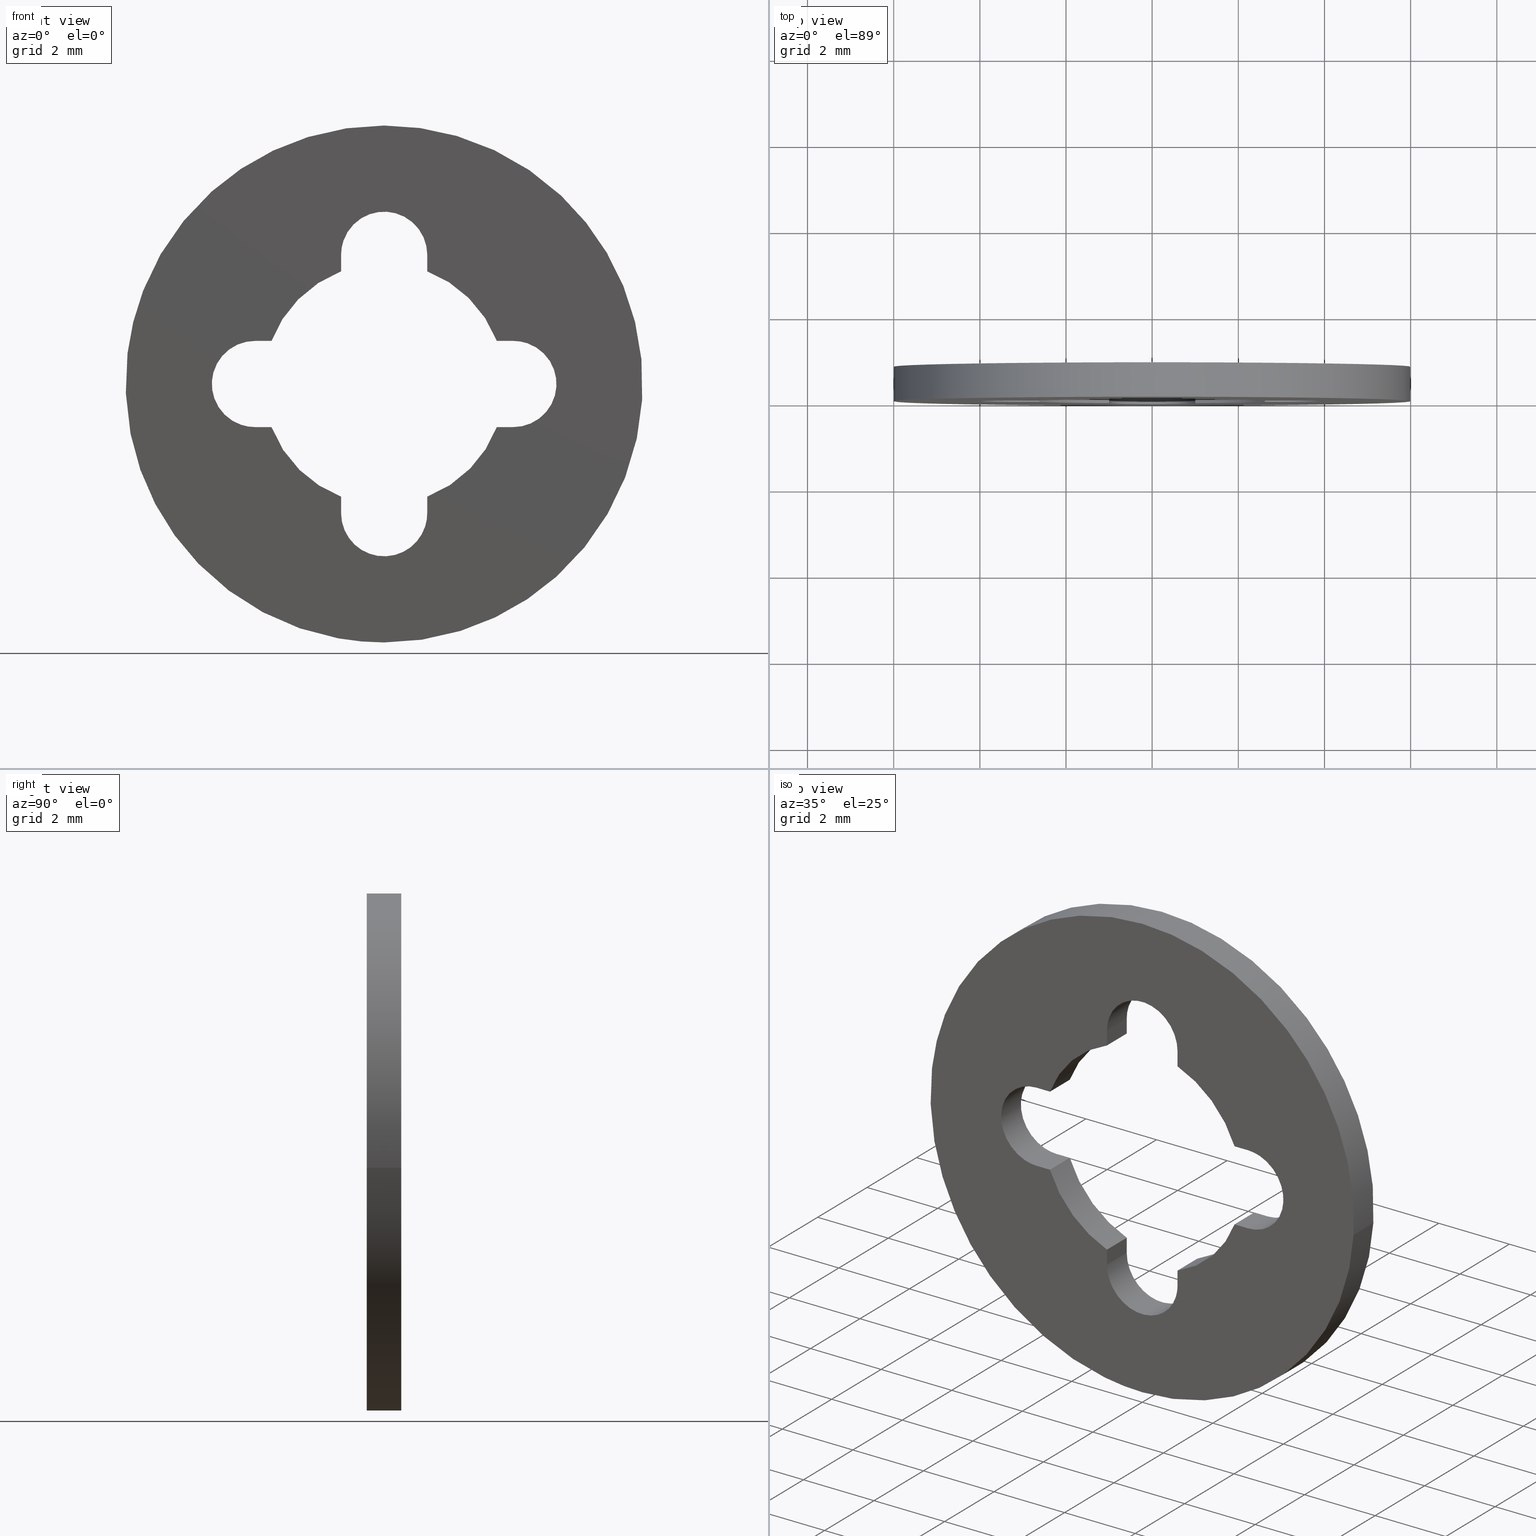
[diagram: canonical four-view strip — front | top / right | iso, engineering-drawing reading convention]
A machine part, canonical four-view strip (front | top / right | iso — engineering-drawing reading convention). The complete STEP part file that produces these views, byte-faithful:
ISO-10303-21;
HEADER;
/****************************************************************
 * Generated by software with PDE/Lib inside                    *
 * PDElib Version 4.4.1-0003, patched  Thursday August 19 11:58 *
 * International Technegroup Inc. (www.iti-oh.com)              *
 ****************************************************************/
FILE_DESCRIPTION((''),'2;1');
FILE_NAME('','2005-07-15T17:46:24',(''),(''),'','CADfix','');
FILE_SCHEMA(('AUTOMOTIVE_DESIGN'));
ENDSEC;
DATA;
#5=APPLICATION_CONTEXT('automotive design');
#6=APPLICATION_PROTOCOL_DEFINITION('Draft International Standard','automotive_design',1998,#5);
#7=PRODUCT_CONTEXT('None',#5,'mechanical');
#8=PRODUCT('washer','','None',(#7));
#9=PRODUCT_RELATED_PRODUCT_CATEGORY('part','description',(#8));
#10=PRODUCT_DEFINITION_FORMATION('None','None',#8);
#11=PRODUCT_DEFINITION_CONTEXT('part definition',#5,'design');
#12=PRODUCT_DEFINITION('None','None',#10,#11);
#18=(NAMED_UNIT(*)PLANE_ANGLE_UNIT()SI_UNIT($,.RADIAN.));
#19=DIMENSIONAL_EXPONENTS(0.0,0.0,0.0,0.0,0.0,0.0,0.0);
#20=PLANE_ANGLE_MEASURE_WITH_UNIT(PLANE_ANGLE_MEASURE(0.017453292500000),#18);
#24=(CONVERSION_BASED_UNIT('DEGREE',#20)NAMED_UNIT(#19)PLANE_ANGLE_UNIT());
#28=(NAMED_UNIT(*)SI_UNIT($,.STERADIAN.)SOLID_ANGLE_UNIT());
#32=(LENGTH_UNIT()NAMED_UNIT(*)SI_UNIT(.MILLI.,.METRE.));
#34=UNCERTAINTY_MEASURE_WITH_UNIT(LENGTH_MEASURE(0.001000000000000),#32,'DISTANCE_ACCURACY_VALUE','');
#36=(GEOMETRIC_REPRESENTATION_CONTEXT(3)GLOBAL_UNCERTAINTY_ASSIGNED_CONTEXT((#34))GLOBAL_UNIT_ASSIGNED_CONTEXT((#24,#28,#32))REPRESENTATION_CONTEXT('None','None'));
#37=AXIS2_PLACEMENT_3D('',#38,#39,#40);
#38=CARTESIAN_POINT('',(0.0,0.0,0.0));
#39=DIRECTION('',(0.0,0.0,1.0));
#40=DIRECTION('',(1.0,0.0,0.0));
#41=ADVANCED_BREP_SHAPE_REPRESENTATION('',(#37,#975),#36);
#42=PRODUCT_DEFINITION_SHAPE('','',#12);
#43=SHAPE_DEFINITION_REPRESENTATION(#42,#41);
#44=CARTESIAN_POINT('',(-5.958057158181998,0.820000000000024,0.708205407940551));
#45=CARTESIAN_POINT('',(-5.978325692691634,0.820000000000024,0.537688371827866));
#46=CARTESIAN_POINT('',(-5.988808790531200,0.820000000000024,0.366291237209142));
#47=CARTESIAN_POINT('',(-6.355100027740342,0.820000000000024,-5.622517553322059));
#48=CARTESIAN_POINT('',(-0.366291237209142,0.820000000000024,-5.988808790531200));
#49=CARTESIAN_POINT('',(5.622517553322059,0.820000000000024,-6.355100027740342));
#50=CARTESIAN_POINT('',(5.988808790531200,0.820000000000024,-0.366291237209142));
#51=CARTESIAN_POINT('',(-5.958057158181998,-0.020500000000001,0.708205407940551));
#52=CARTESIAN_POINT('',(-5.978325692691634,-0.020500000000001,0.537688371827866));
#53=CARTESIAN_POINT('',(-5.988808790531200,-0.020500000000001,0.366291237209142));
#54=CARTESIAN_POINT('',(-6.355100027740342,-0.020500000000001,-5.622517553322059));
#55=CARTESIAN_POINT('',(-0.366291237209142,-0.020500000000001,-5.988808790531200));
#56=CARTESIAN_POINT('',(5.622517553322059,-0.020500000000001,-6.355100027740342));
#57=CARTESIAN_POINT('',(5.988808790531200,-0.020500000000001,-0.366291237209142));
#65=(BOUNDED_SURFACE()B_SPLINE_SURFACE(2,1,((#44,#51),(#45,#52),(#46,#53),(#47,#54),(#48,#55),(#49,#56),(#50,#57)),.UNSPECIFIED.,.F.,.F.,.U.)B_SPLINE_SURFACE_WITH_KNOTS((3,2,2,3),(2,2),(0.0,0.397645019878172,10.338770516832451,20.279896013786729),(0.0,1.0),.UNSPECIFIED.)GEOMETRIC_REPRESENTATION_ITEM()RATIONAL_B_SPLINE_SURFACE(((0.977505800795127,0.977505800795127),(0.988284271247462,0.988284271247462),(1.0,1.0),(0.707106781186548,0.707106781186548),(1.0,1.0),(0.707106781186548,0.707106781186548),(1.0,1.0)))REPRESENTATION_ITEM('')SURFACE());
#66=CARTESIAN_POINT('',(-5.958057609161914,4.394370E-014,0.708201613873624));
#67=VERTEX_POINT('',#66);
#68=CARTESIAN_POINT('',(0.0,0.0,-6.0));
#69=VERTEX_POINT('',#68);
#70=CARTESIAN_POINT('',(-5.958057609161915,4.394370E-014,0.708201613873624));
#71=CARTESIAN_POINT('',(-5.999999999999999,0.0,0.355342800822983));
#72=CARTESIAN_POINT('',(-6.0,0.0,0.0));
#73=CARTESIAN_POINT('',(-6.0,0.0,-6.0));
#74=CARTESIAN_POINT('',(0.0,0.0,-6.0));
#82=(BOUNDED_CURVE()B_SPLINE_CURVE(2,(#70,#71,#72,#73,#74),.UNSPECIFIED.,.F.,.U.)B_SPLINE_CURVE_WITH_KNOTS((3,2,3),(0.229562581136241,0.250000000000000,0.500000000000000),.UNSPECIFIED.)CURVE()GEOMETRIC_REPRESENTATION_ITEM()RATIONAL_B_SPLINE_CURVE((0.956026965128767,0.976056074419019,1.0,0.707106781186548,1.0))REPRESENTATION_ITEM(''));
#83=EDGE_CURVE('',#67,#69,#82,.T.);
#84=ORIENTED_EDGE('',*,*,#83,.F.);
#85=CARTESIAN_POINT('',(-5.958057603599299,0.800000000000023,0.708201660671828));
#86=VERTEX_POINT('',#85);
#87=CARTESIAN_POINT('',(-5.958057603599299,0.800000000000023,0.708201660671828));
#88=CARTESIAN_POINT('',(-5.958057609161914,4.394370E-014,0.708201613873624));
#89=QUASI_UNIFORM_CURVE('',1,(#87,#88),.UNSPECIFIED.,.F.,.U.);
#90=EDGE_CURVE('',#86,#67,#89,.T.);
#91=ORIENTED_EDGE('',*,*,#90,.F.);
#92=CARTESIAN_POINT('',(0.0,0.800000000000023,-6.0));
#93=VERTEX_POINT('',#92);
#94=CARTESIAN_POINT('',(-5.958057603599301,0.800000000000023,0.708201660671828));
#95=CARTESIAN_POINT('',(-6.0,0.800000000000023,0.355342824469453));
#96=CARTESIAN_POINT('',(-6.0,0.800000000000023,0.0));
#97=CARTESIAN_POINT('',(-6.0,0.800000000000023,-6.0));
#98=CARTESIAN_POINT('',(0.0,0.800000000000023,-6.0));
#106=(BOUNDED_CURVE()B_SPLINE_CURVE(2,(#94,#95,#96,#97,#98),.UNSPECIFIED.,.F.,.U.)B_SPLINE_CURVE_WITH_KNOTS((3,2,3),(0.229562579808786,0.250000000000000,0.500000000000000),.UNSPECIFIED.)CURVE()GEOMETRIC_REPRESENTATION_ITEM()RATIONAL_B_SPLINE_CURVE((0.956026962526900,0.976056072863809,1.0,0.707106781186548,1.0))REPRESENTATION_ITEM(''));
#107=EDGE_CURVE('',#86,#93,#106,.T.);
#108=ORIENTED_EDGE('',*,*,#107,.T.);
#109=CARTESIAN_POINT('',(5.988808919991055,0.800000000000023,-0.366289120546966));
#110=VERTEX_POINT('',#109);
#111=CARTESIAN_POINT('',(0.0,0.800000000000023,-6.0));
#112=CARTESIAN_POINT('',(5.644238400040059,0.800000000000023,-6.000000000000001));
#113=CARTESIAN_POINT('',(5.988808919991055,0.800000000000023,-0.366289120546966));
#121=(BOUNDED_CURVE()B_SPLINE_CURVE(2,(#111,#112,#113),.UNSPECIFIED.,.F.,.U.)B_SPLINE_CURVE_WITH_KNOTS((3,3),(0.500000000000000,0.739333023226263),.UNSPECIFIED.)CURVE()GEOMETRIC_REPRESENTATION_ITEM()RATIONAL_B_SPLINE_CURVE((1.0,0.719603921835620,0.976072172374189))REPRESENTATION_ITEM(''));
#122=EDGE_CURVE('',#93,#110,#121,.T.);
#123=ORIENTED_EDGE('',*,*,#122,.T.);
#124=CARTESIAN_POINT('',(5.988808921607088,2.891784E-014,-0.366289094124749));
#125=VERTEX_POINT('',#124);
#126=CARTESIAN_POINT('',(5.988808919991055,0.800000000000023,-0.366289120546966));
#127=CARTESIAN_POINT('',(5.988808921607088,2.891784E-014,-0.366289094124749));
#128=QUASI_UNIFORM_CURVE('',1,(#126,#127),.UNSPECIFIED.,.F.,.U.);
#129=EDGE_CURVE('',#110,#125,#128,.T.);
#130=ORIENTED_EDGE('',*,*,#129,.T.);
#131=CARTESIAN_POINT('',(0.0,0.0,-6.0));
#132=CARTESIAN_POINT('',(5.644238424988588,0.0,-6.0));
#133=CARTESIAN_POINT('',(5.988808921607088,2.891784E-014,-0.366289094124749));
#141=(BOUNDED_CURVE()B_SPLINE_CURVE(2,(#131,#132,#133),.UNSPECIFIED.,.F.,.U.)B_SPLINE_CURVE_WITH_KNOTS((3,3),(0.500000000000000,0.739333023987528),.UNSPECIFIED.)CURVE()GEOMETRIC_REPRESENTATION_ITEM()RATIONAL_B_SPLINE_CURVE((1.0,0.719603920943743,0.976072174005725))REPRESENTATION_ITEM(''));
#142=EDGE_CURVE('',#69,#125,#141,.T.);
#143=ORIENTED_EDGE('',*,*,#142,.F.);
#144=EDGE_LOOP('',(#84,#91,#108,#123,#130,#143));
#145=FACE_OUTER_BOUND('',#144,.T.);
#146=ADVANCED_FACE('',(#145),#65,.T.);
#147=CARTESIAN_POINT('',(5.988808790531200,0.820000000000024,-0.366291237209142));
#148=CARTESIAN_POINT('',(6.355100027740342,0.820000000000024,5.622517553322059));
#149=CARTESIAN_POINT('',(0.366291237209142,0.820000000000024,5.988808790531200));
#150=CARTESIAN_POINT('',(-5.289260945037006,0.820000000000024,6.334717180395164));
#151=CARTESIAN_POINT('',(-5.958057158181998,0.820000000000024,0.708205407940551));
#152=CARTESIAN_POINT('',(5.988808790531200,-0.020500000000001,-0.366291237209142));
#153=CARTESIAN_POINT('',(6.355100027740342,-0.020500000000001,5.622517553322059));
#154=CARTESIAN_POINT('',(0.366291237209142,-0.020500000000001,5.988808790531200));
#155=CARTESIAN_POINT('',(-5.289260945037006,-0.020500000000001,6.334717180395164));
#156=CARTESIAN_POINT('',(-5.958057158181998,-0.020500000000001,0.708205407940551));
#164=(BOUNDED_SURFACE()B_SPLINE_SURFACE(2,1,((#147,#152),(#148,#153),(#149,#154),(#150,#155),(#151,#156)),.UNSPECIFIED.,.F.,.F.,.U.)B_SPLINE_SURFACE_WITH_KNOTS((3,2,3),(2,2),(0.0,9.941125496954278,19.484605974030391),(0.0,1.0),.UNSPECIFIED.)GEOMETRIC_REPRESENTATION_ITEM()RATIONAL_B_SPLINE_SURFACE(((1.0,1.0),(0.707106781186548,0.707106781186548),(1.0,1.0),(0.718822509939086,0.718822509939086),(0.977505800795127,0.977505800795127)))REPRESENTATION_ITEM('')SURFACE());
#165=CARTESIAN_POINT('',(0.0,0.0,6.0));
#166=VERTEX_POINT('',#165);
#167=CARTESIAN_POINT('',(0.0,0.0,6.0));
#168=CARTESIAN_POINT('',(-5.329050573114072,0.0,6.0));
#169=CARTESIAN_POINT('',(-5.958057609161915,4.394370E-014,0.708201613873624));
#177=(BOUNDED_CURVE()B_SPLINE_CURVE(2,(#167,#168,#169),.UNSPECIFIED.,.F.,.U.)B_SPLINE_CURVE_WITH_KNOTS((3,3),(0.0,0.229562581136241),.UNSPECIFIED.)CURVE()GEOMETRIC_REPRESENTATION_ITEM()RATIONAL_B_SPLINE_CURVE((1.0,0.731050706767529,0.956026965128767))REPRESENTATION_ITEM(''));
#178=EDGE_CURVE('',#166,#67,#177,.T.);
#179=ORIENTED_EDGE('',*,*,#178,.F.);
#180=CARTESIAN_POINT('',(5.988808921607088,2.891784E-014,-0.366289094124749));
#181=CARTESIAN_POINT('',(6.000000000000001,0.0,-0.183315505244867));
#182=CARTESIAN_POINT('',(6.0,0.0,0.0));
#183=CARTESIAN_POINT('',(6.0,0.0,6.0));
#184=CARTESIAN_POINT('',(0.0,0.0,6.0));
#192=(BOUNDED_CURVE()B_SPLINE_CURVE(2,(#180,#181,#182,#183,#184),.UNSPECIFIED.,.F.,.U.)B_SPLINE_CURVE_WITH_KNOTS((3,2,3),(0.739333023987528,0.750000000000000,1.0),.UNSPECIFIED.)CURVE()GEOMETRIC_REPRESENTATION_ITEM()RATIONAL_B_SPLINE_CURVE((0.976072174005725,0.987502860242804,1.0,0.707106781186548,1.0))REPRESENTATION_ITEM(''));
#193=EDGE_CURVE('',#125,#166,#192,.T.);
#194=ORIENTED_EDGE('',*,*,#193,.F.);
#195=ORIENTED_EDGE('',*,*,#129,.F.);
#196=CARTESIAN_POINT('',(0.0,0.800000000000023,6.0));
#197=VERTEX_POINT('',#196);
#198=CARTESIAN_POINT('',(5.988808919991055,0.800000000000023,-0.366289120546966));
#199=CARTESIAN_POINT('',(6.0,0.800000000000023,-0.183315518493018));
#200=CARTESIAN_POINT('',(6.0,0.800000000000023,0.0));
#201=CARTESIAN_POINT('',(6.0,0.800000000000023,6.0));
#202=CARTESIAN_POINT('',(0.0,0.800000000000023,6.0));
#210=(BOUNDED_CURVE()B_SPLINE_CURVE(2,(#198,#199,#200,#201,#202),.UNSPECIFIED.,.F.,.U.)B_SPLINE_CURVE_WITH_KNOTS((3,2,3),(0.739333023226263,0.750000000000000,1.0),.UNSPECIFIED.)CURVE()GEOMETRIC_REPRESENTATION_ITEM()RATIONAL_B_SPLINE_CURVE((0.976072172374189,0.987502859350927,1.0,0.707106781186548,1.0))REPRESENTATION_ITEM(''));
#211=EDGE_CURVE('',#110,#197,#210,.T.);
#212=ORIENTED_EDGE('',*,*,#211,.T.);
#213=CARTESIAN_POINT('',(0.0,0.800000000000023,6.0));
#214=CARTESIAN_POINT('',(-5.329050530961814,0.800000000000023,6.000000000000001));
#215=CARTESIAN_POINT('',(-5.958057603599301,0.800000000000023,0.708201660671828));
#223=(BOUNDED_CURVE()B_SPLINE_CURVE(2,(#213,#214,#215),.UNSPECIFIED.,.F.,.U.)B_SPLINE_CURVE_WITH_KNOTS((3,3),(0.0,0.229562579808786),.UNSPECIFIED.)CURVE()GEOMETRIC_REPRESENTATION_ITEM()RATIONAL_B_SPLINE_CURVE((1.0,0.731050708322738,0.956026962526900))REPRESENTATION_ITEM(''));
#224=EDGE_CURVE('',#197,#86,#223,.T.);
#225=ORIENTED_EDGE('',*,*,#224,.T.);
#226=ORIENTED_EDGE('',*,*,#90,.T.);
#227=EDGE_LOOP('',(#179,#194,#195,#212,#225,#226));
#228=FACE_OUTER_BOUND('',#227,.T.);
#229=ADVANCED_FACE('',(#228),#164,.T.);
#230=CARTESIAN_POINT('',(2.973823051692126,0.820000000000024,0.999657324975557));
#231=CARTESIAN_POINT('',(2.973823051692126,-0.020500000000001,0.999657324975557));
#232=CARTESIAN_POINT('',(4.027242072842898,0.820000000000023,1.027242072842902));
#233=CARTESIAN_POINT('',(4.027242072842898,-0.020500000000001,1.027242072842902));
#234=CARTESIAN_POINT('',(3.999657324975557,0.820000000000024,-0.026176948307872));
#235=CARTESIAN_POINT('',(3.999657324975557,-0.020500000000001,-0.026176948307872));
#236=CARTESIAN_POINT('',(3.972072577108214,0.820000000000023,-1.079595969458646));
#237=CARTESIAN_POINT('',(3.972072577108214,-0.020500000000001,-1.079595969458646));
#238=CARTESIAN_POINT('',(2.921540904272156,0.820000000000024,-0.996917333733128));
#239=CARTESIAN_POINT('',(2.921540904272156,-0.020500000000001,-0.996917333733128));
#247=(BOUNDED_SURFACE()B_SPLINE_SURFACE(1,2,((#230,#232,#234,#236,#238),(#231,#233,#235,#237,#239)),.UNSPECIFIED.,.F.,.F.,.U.)B_SPLINE_SURFACE_WITH_KNOTS((2,2),(3,2,3),(0.0,1.0),(0.0,1.0,2.0),.UNSPECIFIED.)GEOMETRIC_REPRESENTATION_ITEM()RATIONAL_B_SPLINE_SURFACE(((1.0,0.688354575693754,1.0,0.688354575693754,1.0),(1.0,0.688354575693754,1.0,0.688354575693754,1.0)))REPRESENTATION_ITEM('')SURFACE());
#248=CARTESIAN_POINT('',(3.0,0.0,-1.0));
#249=VERTEX_POINT('',#248);
#250=CARTESIAN_POINT('',(3.0,0.0,1.0));
#251=VERTEX_POINT('',#250);
#252=CARTESIAN_POINT('',(3.0,0.0,-1.0));
#253=CARTESIAN_POINT('',(4.000000000000000,0.0,-1.0));
#254=CARTESIAN_POINT('',(4.0,0.0,0.0));
#255=CARTESIAN_POINT('',(4.000000000000000,0.0,1.0));
#256=CARTESIAN_POINT('',(3.0,0.0,1.0));
#264=(BOUNDED_CURVE()B_SPLINE_CURVE(2,(#252,#253,#254,#255,#256),.UNSPECIFIED.,.F.,.U.)B_SPLINE_CURVE_WITH_KNOTS((3,2,3),(0.0,0.500000000000000,1.0),.UNSPECIFIED.)CURVE()GEOMETRIC_REPRESENTATION_ITEM()RATIONAL_B_SPLINE_CURVE((1.0,0.707106781186548,1.0,0.707106781186548,1.0))REPRESENTATION_ITEM(''));
#265=EDGE_CURVE('',#249,#251,#264,.T.);
#266=ORIENTED_EDGE('',*,*,#265,.T.);
#267=CARTESIAN_POINT('',(3.0,0.800000000000023,1.0));
#268=VERTEX_POINT('',#267);
#269=CARTESIAN_POINT('',(3.0,0.800000000000023,1.0));
#270=CARTESIAN_POINT('',(3.0,0.0,1.0));
#271=QUASI_UNIFORM_CURVE('',1,(#269,#270),.UNSPECIFIED.,.F.,.U.);
#272=EDGE_CURVE('',#268,#251,#271,.T.);
#273=ORIENTED_EDGE('',*,*,#272,.F.);
#274=CARTESIAN_POINT('',(3.0,0.800000000000023,-1.0));
#275=VERTEX_POINT('',#274);
#276=CARTESIAN_POINT('',(3.0,0.800000000000023,-1.0));
#277=CARTESIAN_POINT('',(4.000000000000000,0.800000000000023,-1.0));
#278=CARTESIAN_POINT('',(4.0,0.800000000000023,0.0));
#279=CARTESIAN_POINT('',(4.000000000000000,0.800000000000023,1.0));
#280=CARTESIAN_POINT('',(3.0,0.800000000000023,1.0));
#288=(BOUNDED_CURVE()B_SPLINE_CURVE(2,(#276,#277,#278,#279,#280),.UNSPECIFIED.,.F.,.U.)B_SPLINE_CURVE_WITH_KNOTS((3,2,3),(0.0,0.500000000000000,1.0),.UNSPECIFIED.)CURVE()GEOMETRIC_REPRESENTATION_ITEM()RATIONAL_B_SPLINE_CURVE((1.0,0.707106781186548,1.0,0.707106781186548,1.0))REPRESENTATION_ITEM(''));
#289=EDGE_CURVE('',#275,#268,#288,.T.);
#290=ORIENTED_EDGE('',*,*,#289,.F.);
#291=CARTESIAN_POINT('',(3.0,0.800000000000023,-1.0));
#292=CARTESIAN_POINT('',(3.0,0.0,-1.0));
#293=QUASI_UNIFORM_CURVE('',1,(#291,#292),.UNSPECIFIED.,.F.,.U.);
#294=EDGE_CURVE('',#275,#249,#293,.T.);
#295=ORIENTED_EDGE('',*,*,#294,.T.);
#296=EDGE_LOOP('',(#266,#273,#290,#295));
#297=FACE_OUTER_BOUND('',#296,.T.);
#298=ADVANCED_FACE('',(#297),#247,.F.);
#299=CARTESIAN_POINT('',(3.019213802039374,-0.039959998449446,-1.0));
#300=CARTESIAN_POINT('',(2.596125471228406,-0.039959998449446,-1.0));
#301=CARTESIAN_POINT('',(3.019213802039374,0.839960019907141,-1.0));
#302=CARTESIAN_POINT('',(2.596125471228406,0.839960019907141,-1.0));
#303=B_SPLINE_SURFACE_WITH_KNOTS('',1,1,((#299,#301),(#300,#302)),.UNSPECIFIED.,.F.,.F.,.U.,(2,2),(2,2),(0.0,0.423088330810968),(0.041708334948495,0.958291687403247),.UNSPECIFIED.);
#304=CARTESIAN_POINT('',(2.615339366124400,0.0,-1.0));
#305=VERTEX_POINT('',#304);
#306=CARTESIAN_POINT('',(2.615339366124400,0.0,-1.0));
#307=CARTESIAN_POINT('',(3.0,0.0,-1.0));
#308=QUASI_UNIFORM_CURVE('',1,(#306,#307),.UNSPECIFIED.,.F.,.U.);
#309=EDGE_CURVE('',#305,#249,#308,.T.);
#310=ORIENTED_EDGE('',*,*,#309,.T.);
#311=ORIENTED_EDGE('',*,*,#294,.F.);
#312=CARTESIAN_POINT('',(2.615339366124400,0.800000000000023,-1.0));
#313=VERTEX_POINT('',#312);
#314=CARTESIAN_POINT('',(2.615339366124400,0.800000000000023,-1.0));
#315=CARTESIAN_POINT('',(3.0,0.800000000000023,-1.0));
#316=QUASI_UNIFORM_CURVE('',1,(#314,#315),.UNSPECIFIED.,.F.,.U.);
#317=EDGE_CURVE('',#313,#275,#316,.T.);
#318=ORIENTED_EDGE('',*,*,#317,.F.);
#319=CARTESIAN_POINT('',(2.615339366124400,0.800000000000023,-1.0));
#320=CARTESIAN_POINT('',(2.615339366124400,0.0,-1.0));
#321=QUASI_UNIFORM_CURVE('',1,(#319,#320),.UNSPECIFIED.,.F.,.U.);
#322=EDGE_CURVE('',#313,#305,#321,.T.);
#323=ORIENTED_EDGE('',*,*,#322,.T.);
#324=EDGE_LOOP('',(#310,#311,#318,#323));
#325=FACE_OUTER_BOUND('',#324,.T.);
#326=ADVANCED_FACE('',(#325),#303,.F.);
#327=CARTESIAN_POINT('',(2.653595675513772,0.820000000000024,-0.893549098200318));
#328=CARTESIAN_POINT('',(2.653595675513772,-0.020500000000001,-0.893549098200318));
#329=CARTESIAN_POINT('',(2.210039401793527,0.820000000000024,-2.210789541016116));
#330=CARTESIAN_POINT('',(2.210039401793527,-0.020500000000001,-2.210789541016116));
#331=CARTESIAN_POINT('',(0.892648506975613,0.820000000000024,-2.653898762762853));
#332=CARTESIAN_POINT('',(0.892648506975613,-0.020500000000001,-2.653898762762853));
#340=(BOUNDED_SURFACE()B_SPLINE_SURFACE(1,2,((#327,#329,#331),(#328,#330,#332)),.UNSPECIFIED.,.F.,.F.,.U.)B_SPLINE_SURFACE_WITH_KNOTS((2,2),(3,3),(0.0,1.0),(0.0,2.626894719128478),.UNSPECIFIED.)GEOMETRIC_REPRESENTATION_ITEM()RATIONAL_B_SPLINE_SURFACE(((0.999851358034276,0.891683071967494,0.991167330352593),(0.999851358034276,0.891683071967494,0.991167330352593)))REPRESENTATION_ITEM('')SURFACE());
#341=CARTESIAN_POINT('',(1.000000000000018,0.0,-2.615339366124394));
#342=VERTEX_POINT('',#341);
#343=CARTESIAN_POINT('',(1.000000000000018,0.0,-2.615339366124397));
#344=CARTESIAN_POINT('',(2.168537779180710,0.0,-2.168537779180697));
#345=CARTESIAN_POINT('',(2.615339366124403,0.0,-1.000000000000002));
#353=(BOUNDED_CURVE()B_SPLINE_CURVE(2,(#343,#344,#345),.UNSPECIFIED.,.F.,.U.)CURVE()GEOMETRIC_REPRESENTATION_ITEM()QUASI_UNIFORM_CURVE()RATIONAL_B_SPLINE_CURVE((1.0,0.913011065027587,1.0))REPRESENTATION_ITEM(''));
#354=EDGE_CURVE('',#342,#305,#353,.T.);
#355=ORIENTED_EDGE('',*,*,#354,.T.);
#356=ORIENTED_EDGE('',*,*,#322,.F.);
#357=CARTESIAN_POINT('',(1.000000000000018,0.800000000000023,-2.615339366124394));
#358=VERTEX_POINT('',#357);
#359=CARTESIAN_POINT('',(1.000000000000018,0.800000000000023,-2.615339366124397));
#360=CARTESIAN_POINT('',(2.168537779180710,0.800000000000023,-2.168537779180697));
#361=CARTESIAN_POINT('',(2.615339366124403,0.800000000000023,-1.000000000000002));
#369=(BOUNDED_CURVE()B_SPLINE_CURVE(2,(#359,#360,#361),.UNSPECIFIED.,.F.,.U.)CURVE()GEOMETRIC_REPRESENTATION_ITEM()QUASI_UNIFORM_CURVE()RATIONAL_B_SPLINE_CURVE((1.0,0.913011065027587,1.0))REPRESENTATION_ITEM(''));
#370=EDGE_CURVE('',#358,#313,#369,.T.);
#371=ORIENTED_EDGE('',*,*,#370,.F.);
#372=CARTESIAN_POINT('',(1.000000000000018,0.800000000000023,-2.615339366124394));
#373=CARTESIAN_POINT('',(1.000000000000018,0.0,-2.615339366124394));
#374=QUASI_UNIFORM_CURVE('',1,(#372,#373),.UNSPECIFIED.,.F.,.U.);
#375=EDGE_CURVE('',#358,#342,#374,.T.);
#376=ORIENTED_EDGE('',*,*,#375,.T.);
#377=EDGE_LOOP('',(#355,#356,#371,#376));
#378=FACE_OUTER_BOUND('',#377,.T.);
#379=ADVANCED_FACE('',(#378),#340,.F.);
#380=CARTESIAN_POINT('',(1.000000000000018,-0.039959998449446,-2.596125487164759));
#381=CARTESIAN_POINT('',(1.000000000000018,-0.039959998449446,-3.019213542787498));
#382=CARTESIAN_POINT('',(1.000000000000018,0.839960019907141,-2.596125487164759));
#383=CARTESIAN_POINT('',(1.000000000000018,0.839960019907141,-3.019213542787498));
#384=B_SPLINE_SURFACE_WITH_KNOTS('',1,1,((#380,#382),(#381,#383)),.UNSPECIFIED.,.F.,.F.,.U.,(2,2),(2,2),(0.0,0.423088055622739),(0.041708334948495,0.958291687403247),.UNSPECIFIED.);
#385=CARTESIAN_POINT('',(0.999999999999985,0.0,-2.999999825467090));
#386=VERTEX_POINT('',#385);
#387=CARTESIAN_POINT('',(0.999999999999985,0.0,-2.999999825467090));
#388=CARTESIAN_POINT('',(1.000000000000018,0.0,-2.615339366124394));
#389=QUASI_UNIFORM_CURVE('',1,(#387,#388),.UNSPECIFIED.,.F.,.U.);
#390=EDGE_CURVE('',#386,#342,#389,.T.);
#391=ORIENTED_EDGE('',*,*,#390,.T.);
#392=ORIENTED_EDGE('',*,*,#375,.F.);
#393=CARTESIAN_POINT('',(0.999999999999985,0.800000000000023,-2.999999825467090));
#394=VERTEX_POINT('',#393);
#395=CARTESIAN_POINT('',(0.999999999999985,0.800000000000023,-2.999999825467090));
#396=CARTESIAN_POINT('',(1.000000000000018,0.800000000000023,-2.615339366124394));
#397=QUASI_UNIFORM_CURVE('',1,(#395,#396),.UNSPECIFIED.,.F.,.U.);
#398=EDGE_CURVE('',#394,#358,#397,.T.);
#399=ORIENTED_EDGE('',*,*,#398,.F.);
#400=CARTESIAN_POINT('',(0.999999999999985,0.800000000000023,-2.999999825467090));
#401=CARTESIAN_POINT('',(0.999999999999985,0.0,-2.999999825467090));
#402=QUASI_UNIFORM_CURVE('',1,(#400,#401),.UNSPECIFIED.,.F.,.U.);
#403=EDGE_CURVE('',#394,#386,#402,.T.);
#404=ORIENTED_EDGE('',*,*,#403,.T.);
#405=EDGE_LOOP('',(#391,#392,#399,#404));
#406=FACE_OUTER_BOUND('',#405,.T.);
#407=ADVANCED_FACE('',(#406),#384,.F.);
#408=CARTESIAN_POINT('',(0.999048221581857,0.820000000000024,-2.956380612634666));
#409=CARTESIAN_POINT('',(0.999048221581857,-0.020500000000001,-2.956380612634666));
#410=CARTESIAN_POINT('',(1.045416995952383,0.820000000000024,-4.018400149585321));
#411=CARTESIAN_POINT('',(1.045416995952383,-0.020500000000001,-4.018400149585321));
#412=CARTESIAN_POINT('',(-0.017452406437285,0.820000000000024,-3.999847695156391));
#413=CARTESIAN_POINT('',(-0.017452406437285,-0.020500000000001,-3.999847695156391));
#414=CARTESIAN_POINT('',(-1.080321808826952,0.820000000000024,-3.981295240727463));
#415=CARTESIAN_POINT('',(-1.080321808826952,-0.020500000000001,-3.981295240727463));
#416=CARTESIAN_POINT('',(-0.996917333733128,0.820000000000024,-2.921540904272154));
#417=CARTESIAN_POINT('',(-0.996917333733128,-0.020500000000001,-2.921540904272154));
#425=(BOUNDED_SURFACE()B_SPLINE_SURFACE(1,2,((#408,#410,#412,#414,#416),(#409,#411,#413,#415,#417)),.UNSPECIFIED.,.F.,.F.,.U.)B_SPLINE_SURFACE_WITH_KNOTS((2,2),(3,2,3),(0.0,1.0),(0.0,1.0,2.0),.UNSPECIFIED.)GEOMETRIC_REPRESENTATION_ITEM()RATIONAL_B_SPLINE_SURFACE(((1.0,0.685182990326359,1.0,0.685182990326359,1.0),(1.0,0.685182990326359,1.0,0.685182990326359,1.0)))REPRESENTATION_ITEM('')SURFACE());
#426=CARTESIAN_POINT('',(-0.999999999999982,0.0,-3.0));
#427=VERTEX_POINT('',#426);
#428=CARTESIAN_POINT('',(-0.999999999999982,0.0,-3.0));
#429=CARTESIAN_POINT('',(-1.0,0.0,-3.577350307974718));
#430=CARTESIAN_POINT('',(-0.499999949616688,0.0,-3.866025432873256));
#431=CARTESIAN_POINT('',(0.000000100766624,0.0,-4.154700557771793));
#432=CARTESIAN_POINT('',(0.500000100766619,0.0,-3.866025345606796));
#433=CARTESIAN_POINT('',(1.000000100766614,0.0,-3.577350133441799));
#434=CARTESIAN_POINT('',(0.999999999999985,0.0,-2.999999825467090));
#442=(BOUNDED_CURVE()B_SPLINE_CURVE(2,(#428,#429,#430,#431,#432,#433,#434),.UNSPECIFIED.,.F.,.U.)B_SPLINE_CURVE_WITH_KNOTS((3,2,2,3),(0.0,0.333333333333333,0.666666666666667,1.0),.UNSPECIFIED.)CURVE()GEOMETRIC_REPRESENTATION_ITEM()RATIONAL_B_SPLINE_CURVE((1.0,0.866025389240029,1.0,0.866025389240029,1.0,0.866025389240029,1.0))REPRESENTATION_ITEM(''));
#443=EDGE_CURVE('',#427,#386,#442,.T.);
#444=ORIENTED_EDGE('',*,*,#443,.T.);
#445=ORIENTED_EDGE('',*,*,#403,.F.);
#446=CARTESIAN_POINT('',(-0.999999999999982,0.800000000000023,-3.0));
#447=VERTEX_POINT('',#446);
#448=CARTESIAN_POINT('',(-0.999999999999982,0.800000000000023,-3.0));
#449=CARTESIAN_POINT('',(-1.0,0.800000000000023,-3.577350307974718));
#450=CARTESIAN_POINT('',(-0.499999949616688,0.800000000000023,-3.866025432873256));
#451=CARTESIAN_POINT('',(0.000000100766624,0.800000000000023,-4.154700557771793));
#452=CARTESIAN_POINT('',(0.500000100766619,0.800000000000023,-3.866025345606796));
#453=CARTESIAN_POINT('',(1.000000100766614,0.800000000000023,-3.577350133441799));
#454=CARTESIAN_POINT('',(0.999999999999985,0.800000000000023,-2.999999825467090));
#462=(BOUNDED_CURVE()B_SPLINE_CURVE(2,(#448,#449,#450,#451,#452,#453,#454),.UNSPECIFIED.,.F.,.U.)B_SPLINE_CURVE_WITH_KNOTS((3,2,2,3),(0.0,0.333333333333333,0.666666666666667,1.0),.UNSPECIFIED.)CURVE()GEOMETRIC_REPRESENTATION_ITEM()RATIONAL_B_SPLINE_CURVE((1.0,0.866025389240029,1.0,0.866025389240029,1.0,0.866025389240029,1.0))REPRESENTATION_ITEM(''));
#463=EDGE_CURVE('',#447,#394,#462,.T.);
#464=ORIENTED_EDGE('',*,*,#463,.F.);
#465=CARTESIAN_POINT('',(-0.999999999999982,0.800000000000023,-3.0));
#466=CARTESIAN_POINT('',(-0.999999999999982,0.0,-3.0));
#467=QUASI_UNIFORM_CURVE('',1,(#465,#466),.UNSPECIFIED.,.F.,.U.);
#468=EDGE_CURVE('',#447,#427,#467,.T.);
#469=ORIENTED_EDGE('',*,*,#468,.T.);
#470=EDGE_LOOP('',(#444,#445,#464,#469));
#471=FACE_OUTER_BOUND('',#470,.T.);
#472=ADVANCED_FACE('',(#471),#425,.F.);
#473=CARTESIAN_POINT('',(-0.999999999999982,-0.039959998449446,-3.019213802039373));
#474=CARTESIAN_POINT('',(-0.999999999999982,-0.039959998449446,-2.596125471228417));
#475=CARTESIAN_POINT('',(-0.999999999999982,0.839960019907141,-3.019213802039373));
#476=CARTESIAN_POINT('',(-0.999999999999982,0.839960019907141,-2.596125471228417));
#477=B_SPLINE_SURFACE_WITH_KNOTS('',1,1,((#473,#475),(#474,#476)),.UNSPECIFIED.,.F.,.F.,.U.,(2,2),(2,2),(0.0,0.423088330810956),(0.041708334948495,0.958291687403247),.UNSPECIFIED.);
#478=CARTESIAN_POINT('',(-0.999999999999982,0.0,-2.615339366124410));
#479=VERTEX_POINT('',#478);
#480=CARTESIAN_POINT('',(-0.999999999999982,0.0,-2.615339366124410));
#481=CARTESIAN_POINT('',(-0.999999999999982,0.0,-3.0));
#482=QUASI_UNIFORM_CURVE('',1,(#480,#481),.UNSPECIFIED.,.F.,.U.);
#483=EDGE_CURVE('',#479,#427,#482,.T.);
#484=ORIENTED_EDGE('',*,*,#483,.T.);
#485=ORIENTED_EDGE('',*,*,#468,.F.);
#486=CARTESIAN_POINT('',(-0.999999999999982,0.800000000000023,-2.615339366124410));
#487=VERTEX_POINT('',#486);
#488=CARTESIAN_POINT('',(-0.999999999999982,0.800000000000023,-2.615339366124410));
#489=CARTESIAN_POINT('',(-0.999999999999982,0.800000000000023,-3.0));
#490=QUASI_UNIFORM_CURVE('',1,(#488,#489),.UNSPECIFIED.,.F.,.U.);
#491=EDGE_CURVE('',#487,#447,#490,.T.);
#492=ORIENTED_EDGE('',*,*,#491,.F.);
#493=CARTESIAN_POINT('',(-0.999999999999982,0.800000000000023,-2.615339366124410));
#494=CARTESIAN_POINT('',(-0.999999999999982,0.0,-2.615339366124410));
#495=QUASI_UNIFORM_CURVE('',1,(#493,#494),.UNSPECIFIED.,.F.,.U.);
#496=EDGE_CURVE('',#487,#479,#495,.T.);
#497=ORIENTED_EDGE('',*,*,#496,.T.);
#498=EDGE_LOOP('',(#484,#485,#492,#497));
#499=FACE_OUTER_BOUND('',#498,.T.);
#500=ADVANCED_FACE('',(#499),#477,.F.);
#501=CARTESIAN_POINT('',(-0.893549098200336,0.820000000000024,-2.653595675513766));
#502=CARTESIAN_POINT('',(-0.893549098200336,-0.020500000000001,-2.653595675513766));
#503=CARTESIAN_POINT('',(-2.210789541016130,0.820000000000024,-2.210039401793512));
#504=CARTESIAN_POINT('',(-2.210789541016130,-0.020500000000001,-2.210039401793512));
#505=CARTESIAN_POINT('',(-2.653898762762860,0.820000000000024,-0.892648506975595));
#506=CARTESIAN_POINT('',(-2.653898762762860,-0.020500000000001,-0.892648506975595));
#514=(BOUNDED_SURFACE()B_SPLINE_SURFACE(1,2,((#501,#503,#505),(#502,#504,#506)),.UNSPECIFIED.,.F.,.F.,.U.)B_SPLINE_SURFACE_WITH_KNOTS((2,2),(3,3),(0.0,1.0),(0.0,2.626894719128480),.UNSPECIFIED.)GEOMETRIC_REPRESENTATION_ITEM()RATIONAL_B_SPLINE_SURFACE(((0.999851358034276,0.891683071967494,0.991167330352593),(0.999851358034276,0.891683071967494,0.991167330352593)))REPRESENTATION_ITEM('')SURFACE());
#515=CARTESIAN_POINT('',(-2.615339366124400,0.0,-1.0));
#516=VERTEX_POINT('',#515);
#517=CARTESIAN_POINT('',(-2.615339366124404,0.0,-1.000000000000001));
#518=CARTESIAN_POINT('',(-2.168537779180702,0.0,-2.168537779180717));
#519=CARTESIAN_POINT('',(-0.999999999999983,0.0,-2.615339366124411));
#527=(BOUNDED_CURVE()B_SPLINE_CURVE(2,(#517,#518,#519),.UNSPECIFIED.,.F.,.U.)CURVE()GEOMETRIC_REPRESENTATION_ITEM()QUASI_UNIFORM_CURVE()RATIONAL_B_SPLINE_CURVE((1.0,0.913011065027585,1.0))REPRESENTATION_ITEM(''));
#528=EDGE_CURVE('',#516,#479,#527,.T.);
#529=ORIENTED_EDGE('',*,*,#528,.T.);
#530=ORIENTED_EDGE('',*,*,#496,.F.);
#531=CARTESIAN_POINT('',(-2.615339366124400,0.800000000000023,-1.0));
#532=VERTEX_POINT('',#531);
#533=CARTESIAN_POINT('',(-2.615339366124404,0.800000000000023,-1.000000000000001));
#534=CARTESIAN_POINT('',(-2.168537779180702,0.800000000000023,-2.168537779180717));
#535=CARTESIAN_POINT('',(-0.999999999999983,0.800000000000023,-2.615339366124411));
#543=(BOUNDED_CURVE()B_SPLINE_CURVE(2,(#533,#534,#535),.UNSPECIFIED.,.F.,.U.)CURVE()GEOMETRIC_REPRESENTATION_ITEM()QUASI_UNIFORM_CURVE()RATIONAL_B_SPLINE_CURVE((1.0,0.913011065027585,1.0))REPRESENTATION_ITEM(''));
#544=EDGE_CURVE('',#532,#487,#543,.T.);
#545=ORIENTED_EDGE('',*,*,#544,.F.);
#546=CARTESIAN_POINT('',(-2.615339366124400,0.800000000000023,-1.0));
#547=CARTESIAN_POINT('',(-2.615339366124400,0.0,-1.0));
#548=QUASI_UNIFORM_CURVE('',1,(#546,#547),.UNSPECIFIED.,.F.,.U.);
#549=EDGE_CURVE('',#532,#516,#548,.T.);
#550=ORIENTED_EDGE('',*,*,#549,.T.);
#551=EDGE_LOOP('',(#529,#530,#545,#550));
#552=FACE_OUTER_BOUND('',#551,.T.);
#553=ADVANCED_FACE('',(#552),#514,.F.);
#554=CARTESIAN_POINT('',(-2.596125474323971,-0.039959998449446,-1.0));
#555=CARTESIAN_POINT('',(-3.019213812700346,-0.039959998449446,-1.0));
#556=CARTESIAN_POINT('',(-2.596125474323971,0.839960019907141,-1.0));
#557=CARTESIAN_POINT('',(-3.019213812700346,0.839960019907141,-1.0));
#558=B_SPLINE_SURFACE_WITH_KNOTS('',1,1,((#554,#556),(#555,#557)),.UNSPECIFIED.,.F.,.F.,.U.,(2,2),(2,2),(0.0,0.423088338376375),(0.041708334948495,0.958291687403247),.UNSPECIFIED.);
#559=CARTESIAN_POINT('',(-3.0,0.0,-1.0));
#560=VERTEX_POINT('',#559);
#561=CARTESIAN_POINT('',(-3.0,0.0,-1.0));
#562=CARTESIAN_POINT('',(-2.615339366124400,0.0,-1.0));
#563=QUASI_UNIFORM_CURVE('',1,(#561,#562),.UNSPECIFIED.,.F.,.U.);
#564=EDGE_CURVE('',#560,#516,#563,.T.);
#565=ORIENTED_EDGE('',*,*,#564,.T.);
#566=ORIENTED_EDGE('',*,*,#549,.F.);
#567=CARTESIAN_POINT('',(-3.0,0.800000000000023,-1.0));
#568=VERTEX_POINT('',#567);
#569=CARTESIAN_POINT('',(-3.0,0.800000000000023,-1.0));
#570=CARTESIAN_POINT('',(-2.615339366124400,0.800000000000023,-1.0));
#571=QUASI_UNIFORM_CURVE('',1,(#569,#570),.UNSPECIFIED.,.F.,.U.);
#572=EDGE_CURVE('',#568,#532,#571,.T.);
#573=ORIENTED_EDGE('',*,*,#572,.F.);
#574=CARTESIAN_POINT('',(-3.0,0.800000000000023,-1.0));
#575=CARTESIAN_POINT('',(-3.0,0.0,-1.0));
#576=QUASI_UNIFORM_CURVE('',1,(#574,#575),.UNSPECIFIED.,.F.,.U.);
#577=EDGE_CURVE('',#568,#560,#576,.T.);
#578=ORIENTED_EDGE('',*,*,#577,.T.);
#579=EDGE_LOOP('',(#565,#566,#573,#578));
#580=FACE_OUTER_BOUND('',#579,.T.);
#581=ADVANCED_FACE('',(#580),#558,.F.);
#582=CARTESIAN_POINT('',(-2.973823051692126,0.820000000000024,-0.999657324975557));
#583=CARTESIAN_POINT('',(-2.973823051692126,-0.020500000000001,-0.999657324975557));
#584=CARTESIAN_POINT('',(-4.027242072842898,0.820000000000023,-1.027242072842902));
#585=CARTESIAN_POINT('',(-4.027242072842898,-0.020500000000001,-1.027242072842902));
#586=CARTESIAN_POINT('',(-3.999657324975557,0.820000000000024,0.026176948307872));
#587=CARTESIAN_POINT('',(-3.999657324975557,-0.020500000000001,0.026176948307872));
#588=CARTESIAN_POINT('',(-3.972072577108214,0.820000000000023,1.079595969458646));
#589=CARTESIAN_POINT('',(-3.972072577108214,-0.020500000000001,1.079595969458646));
#590=CARTESIAN_POINT('',(-2.921540904272156,0.820000000000024,0.996917333733128));
#591=CARTESIAN_POINT('',(-2.921540904272156,-0.020500000000001,0.996917333733128));
#599=(BOUNDED_SURFACE()B_SPLINE_SURFACE(1,2,((#582,#584,#586,#588,#590),(#583,#585,#587,#589,#591)),.UNSPECIFIED.,.F.,.F.,.U.)B_SPLINE_SURFACE_WITH_KNOTS((2,2),(3,2,3),(0.0,1.0),(0.0,1.0,2.0),.UNSPECIFIED.)GEOMETRIC_REPRESENTATION_ITEM()RATIONAL_B_SPLINE_SURFACE(((1.0,0.688354575693754,1.0,0.688354575693754,1.0),(1.0,0.688354575693754,1.0,0.688354575693754,1.0)))REPRESENTATION_ITEM('')SURFACE());
#600=CARTESIAN_POINT('',(-3.0,0.0,1.0));
#601=VERTEX_POINT('',#600);
#602=CARTESIAN_POINT('',(-3.0,0.0,1.0));
#603=CARTESIAN_POINT('',(-4.000000000000000,0.0,1.0));
#604=CARTESIAN_POINT('',(-4.0,0.0,0.0));
#605=CARTESIAN_POINT('',(-4.000000000000000,0.0,-1.0));
#606=CARTESIAN_POINT('',(-3.0,0.0,-1.0));
#614=(BOUNDED_CURVE()B_SPLINE_CURVE(2,(#602,#603,#604,#605,#606),.UNSPECIFIED.,.F.,.U.)B_SPLINE_CURVE_WITH_KNOTS((3,2,3),(0.0,0.500000000000000,1.0),.UNSPECIFIED.)CURVE()GEOMETRIC_REPRESENTATION_ITEM()RATIONAL_B_SPLINE_CURVE((1.0,0.707106781186548,1.0,0.707106781186548,1.0))REPRESENTATION_ITEM(''));
#615=EDGE_CURVE('',#601,#560,#614,.T.);
#616=ORIENTED_EDGE('',*,*,#615,.T.);
#617=ORIENTED_EDGE('',*,*,#577,.F.);
#618=CARTESIAN_POINT('',(-3.0,0.800000000000023,1.0));
#619=VERTEX_POINT('',#618);
#620=CARTESIAN_POINT('',(-3.0,0.800000000000023,1.0));
#621=CARTESIAN_POINT('',(-4.000000000000000,0.800000000000023,1.0));
#622=CARTESIAN_POINT('',(-4.0,0.800000000000023,0.0));
#623=CARTESIAN_POINT('',(-4.000000000000000,0.800000000000023,-1.0));
#624=CARTESIAN_POINT('',(-3.0,0.800000000000023,-1.0));
#632=(BOUNDED_CURVE()B_SPLINE_CURVE(2,(#620,#621,#622,#623,#624),.UNSPECIFIED.,.F.,.U.)B_SPLINE_CURVE_WITH_KNOTS((3,2,3),(0.0,0.500000000000000,1.0),.UNSPECIFIED.)CURVE()GEOMETRIC_REPRESENTATION_ITEM()RATIONAL_B_SPLINE_CURVE((1.0,0.707106781186548,1.0,0.707106781186548,1.0))REPRESENTATION_ITEM(''));
#633=EDGE_CURVE('',#619,#568,#632,.T.);
#634=ORIENTED_EDGE('',*,*,#633,.F.);
#635=CARTESIAN_POINT('',(-3.0,0.800000000000023,1.0));
#636=CARTESIAN_POINT('',(-3.0,0.0,1.0));
#637=QUASI_UNIFORM_CURVE('',1,(#635,#636),.UNSPECIFIED.,.F.,.U.);
#638=EDGE_CURVE('',#619,#601,#637,.T.);
#639=ORIENTED_EDGE('',*,*,#638,.T.);
#640=EDGE_LOOP('',(#616,#617,#634,#639));
#641=FACE_OUTER_BOUND('',#640,.T.);
#642=ADVANCED_FACE('',(#641),#599,.F.);
#643=CARTESIAN_POINT('',(-3.019213802039374,-0.039959998449446,1.0));
#644=CARTESIAN_POINT('',(-2.596125471228406,-0.039959998449446,1.0));
#645=CARTESIAN_POINT('',(-3.019213802039374,0.839960019907141,1.0));
#646=CARTESIAN_POINT('',(-2.596125471228406,0.839960019907141,1.0));
#647=B_SPLINE_SURFACE_WITH_KNOTS('',1,1,((#643,#645),(#644,#646)),.UNSPECIFIED.,.F.,.F.,.U.,(2,2),(2,2),(0.0,0.423088330810968),(0.041708334948495,0.958291687403247),.UNSPECIFIED.);
#648=CARTESIAN_POINT('',(-2.615339366124400,0.0,1.0));
#649=VERTEX_POINT('',#648);
#650=CARTESIAN_POINT('',(-2.615339366124400,0.0,1.0));
#651=CARTESIAN_POINT('',(-3.0,0.0,1.0));
#652=QUASI_UNIFORM_CURVE('',1,(#650,#651),.UNSPECIFIED.,.F.,.U.);
#653=EDGE_CURVE('',#649,#601,#652,.T.);
#654=ORIENTED_EDGE('',*,*,#653,.T.);
#655=ORIENTED_EDGE('',*,*,#638,.F.);
#656=CARTESIAN_POINT('',(-2.615339366124400,0.800000000000023,1.0));
#657=VERTEX_POINT('',#656);
#658=CARTESIAN_POINT('',(-2.615339366124400,0.800000000000023,1.0));
#659=CARTESIAN_POINT('',(-3.0,0.800000000000023,1.0));
#660=QUASI_UNIFORM_CURVE('',1,(#658,#659),.UNSPECIFIED.,.F.,.U.);
#661=EDGE_CURVE('',#657,#619,#660,.T.);
#662=ORIENTED_EDGE('',*,*,#661,.F.);
#663=CARTESIAN_POINT('',(-2.615339366124400,0.800000000000023,1.0));
#664=CARTESIAN_POINT('',(-2.615339366124400,0.0,1.0));
#665=QUASI_UNIFORM_CURVE('',1,(#663,#664),.UNSPECIFIED.,.F.,.U.);
#666=EDGE_CURVE('',#657,#649,#665,.T.);
#667=ORIENTED_EDGE('',*,*,#666,.T.);
#668=EDGE_LOOP('',(#654,#655,#662,#667));
#669=FACE_OUTER_BOUND('',#668,.T.);
#670=ADVANCED_FACE('',(#669),#647,.F.);
#671=CARTESIAN_POINT('',(-2.653595675513760,0.820000000000024,0.893549098200355));
#672=CARTESIAN_POINT('',(-2.653595675513760,-0.020500000000001,0.893549098200355));
#673=CARTESIAN_POINT('',(-2.210039401793497,0.820000000000023,2.210789541016146));
#674=CARTESIAN_POINT('',(-2.210039401793497,-0.020500000000001,2.210789541016146));
#675=CARTESIAN_POINT('',(-0.892648506975576,0.820000000000024,2.653898762762866));
#676=CARTESIAN_POINT('',(-0.892648506975576,-0.020500000000001,2.653898762762866));
#684=(BOUNDED_SURFACE()B_SPLINE_SURFACE(1,2,((#671,#673,#675),(#672,#674,#676)),.UNSPECIFIED.,.F.,.F.,.U.)B_SPLINE_SURFACE_WITH_KNOTS((2,2),(3,3),(0.0,1.0),(0.0,2.626894719128479),.UNSPECIFIED.)GEOMETRIC_REPRESENTATION_ITEM()RATIONAL_B_SPLINE_SURFACE(((0.999851358034276,0.891683071967494,0.991167330352593),(0.999851358034276,0.891683071967494,0.991167330352593)))REPRESENTATION_ITEM('')SURFACE());
#685=CARTESIAN_POINT('',(-0.999999999999982,0.0,2.615339366124410));
#686=VERTEX_POINT('',#685);
#687=CARTESIAN_POINT('',(-0.999999999999983,0.0,2.615339366124411));
#688=CARTESIAN_POINT('',(-2.168537779180701,0.0,2.168537779180718));
#689=CARTESIAN_POINT('',(-2.615339366124403,0.0,1.000000000000001));
#697=(BOUNDED_CURVE()B_SPLINE_CURVE(2,(#687,#688,#689),.UNSPECIFIED.,.F.,.U.)CURVE()GEOMETRIC_REPRESENTATION_ITEM()QUASI_UNIFORM_CURVE()RATIONAL_B_SPLINE_CURVE((1.0,0.913011065027585,1.0))REPRESENTATION_ITEM(''));
#698=EDGE_CURVE('',#686,#649,#697,.T.);
#699=ORIENTED_EDGE('',*,*,#698,.T.);
#700=ORIENTED_EDGE('',*,*,#666,.F.);
#701=CARTESIAN_POINT('',(-0.999999999999982,0.800000000000023,2.615339366124410));
#702=VERTEX_POINT('',#701);
#703=CARTESIAN_POINT('',(-0.999999999999983,0.800000000000023,2.615339366124411));
#704=CARTESIAN_POINT('',(-2.168537779180701,0.800000000000023,2.168537779180718));
#705=CARTESIAN_POINT('',(-2.615339366124403,0.800000000000023,1.000000000000001));
#713=(BOUNDED_CURVE()B_SPLINE_CURVE(2,(#703,#704,#705),.UNSPECIFIED.,.F.,.U.)CURVE()GEOMETRIC_REPRESENTATION_ITEM()QUASI_UNIFORM_CURVE()RATIONAL_B_SPLINE_CURVE((1.0,0.913011065027585,1.0))REPRESENTATION_ITEM(''));
#714=EDGE_CURVE('',#702,#657,#713,.T.);
#715=ORIENTED_EDGE('',*,*,#714,.F.);
#716=CARTESIAN_POINT('',(-0.999999999999982,0.800000000000023,2.615339366124410));
#717=CARTESIAN_POINT('',(-0.999999999999982,0.0,2.615339366124410));
#718=QUASI_UNIFORM_CURVE('',1,(#716,#717),.UNSPECIFIED.,.F.,.U.);
#719=EDGE_CURVE('',#702,#686,#718,.T.);
#720=ORIENTED_EDGE('',*,*,#719,.T.);
#721=EDGE_LOOP('',(#699,#700,#715,#720));
#722=FACE_OUTER_BOUND('',#721,.T.);
#723=ADVANCED_FACE('',(#722),#684,.F.);
#724=CARTESIAN_POINT('',(-0.999999999999982,-0.039959998449446,2.596125474323982));
#725=CARTESIAN_POINT('',(-0.999999999999982,-0.039959998449446,3.019213812700345));
#726=CARTESIAN_POINT('',(-0.999999999999982,0.839960019907141,2.596125474323982));
#727=CARTESIAN_POINT('',(-0.999999999999982,0.839960019907141,3.019213812700345));
#728=B_SPLINE_SURFACE_WITH_KNOTS('',1,1,((#724,#726),(#725,#727)),.UNSPECIFIED.,.F.,.F.,.U.,(2,2),(2,2),(0.0,0.423088338376363),(0.041708334948495,0.958291687403247),.UNSPECIFIED.);
#729=CARTESIAN_POINT('',(-1.0,0.0,3.0));
#730=VERTEX_POINT('',#729);
#731=CARTESIAN_POINT('',(-1.0,0.0,3.0));
#732=CARTESIAN_POINT('',(-0.999999999999982,0.0,2.615339366124410));
#733=QUASI_UNIFORM_CURVE('',1,(#731,#732),.UNSPECIFIED.,.F.,.U.);
#734=EDGE_CURVE('',#730,#686,#733,.T.);
#735=ORIENTED_EDGE('',*,*,#734,.T.);
#736=ORIENTED_EDGE('',*,*,#719,.F.);
#737=CARTESIAN_POINT('',(-1.0,0.800000000000023,3.0));
#738=VERTEX_POINT('',#737);
#739=CARTESIAN_POINT('',(-1.0,0.800000000000023,3.0));
#740=CARTESIAN_POINT('',(-0.999999999999982,0.800000000000023,2.615339366124410));
#741=QUASI_UNIFORM_CURVE('',1,(#739,#740),.UNSPECIFIED.,.F.,.U.);
#742=EDGE_CURVE('',#738,#702,#741,.T.);
#743=ORIENTED_EDGE('',*,*,#742,.F.);
#744=CARTESIAN_POINT('',(-1.0,0.800000000000023,3.0));
#745=CARTESIAN_POINT('',(-1.0,0.0,3.0));
#746=QUASI_UNIFORM_CURVE('',1,(#744,#745),.UNSPECIFIED.,.F.,.U.);
#747=EDGE_CURVE('',#738,#730,#746,.T.);
#748=ORIENTED_EDGE('',*,*,#747,.T.);
#749=EDGE_LOOP('',(#735,#736,#743,#748));
#750=FACE_OUTER_BOUND('',#749,.T.);
#751=ADVANCED_FACE('',(#750),#728,.F.);
#752=CARTESIAN_POINT('',(-0.999657324975557,0.820000000000024,2.973823051692126));
#753=CARTESIAN_POINT('',(-0.999657324975557,-0.020500000000001,2.973823051692126));
#754=CARTESIAN_POINT('',(-1.027242072842902,0.820000000000024,4.027242072842898));
#755=CARTESIAN_POINT('',(-1.027242072842902,-0.020500000000001,4.027242072842898));
#756=CARTESIAN_POINT('',(0.026176948307872,0.820000000000024,3.999657324975557));
#757=CARTESIAN_POINT('',(0.026176948307872,-0.020500000000001,3.999657324975557));
#758=CARTESIAN_POINT('',(1.079595969458646,0.820000000000024,3.972072577108214));
#759=CARTESIAN_POINT('',(1.079595969458646,-0.020500000000001,3.972072577108214));
#760=CARTESIAN_POINT('',(0.996917333733128,0.820000000000024,2.921540904272156));
#761=CARTESIAN_POINT('',(0.996917333733128,-0.020500000000001,2.921540904272156));
#769=(BOUNDED_SURFACE()B_SPLINE_SURFACE(1,2,((#752,#754,#756,#758,#760),(#753,#755,#757,#759,#761)),.UNSPECIFIED.,.F.,.F.,.U.)B_SPLINE_SURFACE_WITH_KNOTS((2,2),(3,2,3),(0.0,1.0),(0.0,1.0,2.0),.UNSPECIFIED.)GEOMETRIC_REPRESENTATION_ITEM()RATIONAL_B_SPLINE_SURFACE(((1.0,0.688354575693754,1.0,0.688354575693754,1.0),(1.0,0.688354575693754,1.0,0.688354575693754,1.0)))REPRESENTATION_ITEM('')SURFACE());
#770=CARTESIAN_POINT('',(1.000000000000018,0.0,3.0));
#771=VERTEX_POINT('',#770);
#772=CARTESIAN_POINT('',(1.000000000000018,0.0,3.0));
#773=CARTESIAN_POINT('',(1.0,0.0,4.000000000000000));
#774=CARTESIAN_POINT('',(0.0,0.0,4.0));
#775=CARTESIAN_POINT('',(-1.0,0.0,4.000000000000000));
#776=CARTESIAN_POINT('',(-1.0,0.0,3.0));
#784=(BOUNDED_CURVE()B_SPLINE_CURVE(2,(#772,#773,#774,#775,#776),.UNSPECIFIED.,.F.,.U.)B_SPLINE_CURVE_WITH_KNOTS((3,2,3),(0.0,0.500000000000000,1.0),.UNSPECIFIED.)CURVE()GEOMETRIC_REPRESENTATION_ITEM()RATIONAL_B_SPLINE_CURVE((1.0,0.707106781186548,1.0,0.707106781186548,1.0))REPRESENTATION_ITEM(''));
#785=EDGE_CURVE('',#771,#730,#784,.T.);
#786=ORIENTED_EDGE('',*,*,#785,.T.);
#787=ORIENTED_EDGE('',*,*,#747,.F.);
#788=CARTESIAN_POINT('',(1.000000000000018,0.800000000000023,3.0));
#789=VERTEX_POINT('',#788);
#790=CARTESIAN_POINT('',(1.000000000000018,0.800000000000023,3.0));
#791=CARTESIAN_POINT('',(1.0,0.800000000000023,4.000000000000000));
#792=CARTESIAN_POINT('',(0.0,0.800000000000023,4.0));
#793=CARTESIAN_POINT('',(-1.0,0.800000000000023,4.000000000000000));
#794=CARTESIAN_POINT('',(-1.0,0.800000000000023,3.0));
#802=(BOUNDED_CURVE()B_SPLINE_CURVE(2,(#790,#791,#792,#793,#794),.UNSPECIFIED.,.F.,.U.)B_SPLINE_CURVE_WITH_KNOTS((3,2,3),(0.0,0.500000000000000,1.0),.UNSPECIFIED.)CURVE()GEOMETRIC_REPRESENTATION_ITEM()RATIONAL_B_SPLINE_CURVE((1.0,0.707106781186548,1.0,0.707106781186548,1.0))REPRESENTATION_ITEM(''));
#803=EDGE_CURVE('',#789,#738,#802,.T.);
#804=ORIENTED_EDGE('',*,*,#803,.F.);
#805=CARTESIAN_POINT('',(1.000000000000018,0.800000000000023,3.0));
#806=CARTESIAN_POINT('',(1.000000000000018,0.0,3.0));
#807=QUASI_UNIFORM_CURVE('',1,(#805,#806),.UNSPECIFIED.,.F.,.U.);
#808=EDGE_CURVE('',#789,#771,#807,.T.);
#809=ORIENTED_EDGE('',*,*,#808,.T.);
#810=EDGE_LOOP('',(#786,#787,#804,#809));
#811=FACE_OUTER_BOUND('',#810,.T.);
#812=ADVANCED_FACE('',(#811),#769,.F.);
#813=CARTESIAN_POINT('',(1.000000000000018,-0.039959998449446,3.019213802039374));
#814=CARTESIAN_POINT('',(1.000000000000018,-0.039959998449446,2.596125471228401));
#815=CARTESIAN_POINT('',(1.000000000000018,0.839960019907141,3.019213802039374));
#816=CARTESIAN_POINT('',(1.000000000000018,0.839960019907141,2.596125471228401));
#817=B_SPLINE_SURFACE_WITH_KNOTS('',1,1,((#813,#815),(#814,#816)),.UNSPECIFIED.,.F.,.F.,.U.,(2,2),(2,2),(0.0,0.423088330810974),(0.041708334948495,0.958291687403247),.UNSPECIFIED.);
#818=CARTESIAN_POINT('',(1.000000000000018,0.0,2.615339366124394));
#819=VERTEX_POINT('',#818);
#820=CARTESIAN_POINT('',(1.000000000000018,0.0,2.615339366124394));
#821=CARTESIAN_POINT('',(1.000000000000018,0.0,3.0));
#822=QUASI_UNIFORM_CURVE('',1,(#820,#821),.UNSPECIFIED.,.F.,.U.);
#823=EDGE_CURVE('',#819,#771,#822,.T.);
#824=ORIENTED_EDGE('',*,*,#823,.T.);
#825=ORIENTED_EDGE('',*,*,#808,.F.);
#826=CARTESIAN_POINT('',(1.000000000000018,0.800000000000023,2.615339366124394));
#827=VERTEX_POINT('',#826);
#828=CARTESIAN_POINT('',(1.000000000000018,0.800000000000023,2.615339366124394));
#829=CARTESIAN_POINT('',(1.000000000000018,0.800000000000023,3.0));
#830=QUASI_UNIFORM_CURVE('',1,(#828,#829),.UNSPECIFIED.,.F.,.U.);
#831=EDGE_CURVE('',#827,#789,#830,.T.);
#832=ORIENTED_EDGE('',*,*,#831,.F.);
#833=CARTESIAN_POINT('',(1.000000000000018,0.800000000000023,2.615339366124394));
#834=CARTESIAN_POINT('',(1.000000000000018,0.0,2.615339366124394));
#835=QUASI_UNIFORM_CURVE('',1,(#833,#834),.UNSPECIFIED.,.F.,.U.);
#836=EDGE_CURVE('',#827,#819,#835,.T.);
#837=ORIENTED_EDGE('',*,*,#836,.T.);
#838=EDGE_LOOP('',(#824,#825,#832,#837));
#839=FACE_OUTER_BOUND('',#838,.T.);
#840=ADVANCED_FACE('',(#839),#817,.F.);
#841=CARTESIAN_POINT('',(0.893549098200336,0.820000000000024,2.653595675513766));
#842=CARTESIAN_POINT('',(0.893549098200336,-0.020500000000001,2.653595675513766));
#843=CARTESIAN_POINT('',(2.210789541016130,0.820000000000024,2.210039401793512));
#844=CARTESIAN_POINT('',(2.210789541016130,-0.020500000000001,2.210039401793512));
#845=CARTESIAN_POINT('',(2.653898762762860,0.820000000000024,0.892648506975595));
#846=CARTESIAN_POINT('',(2.653898762762860,-0.020500000000001,0.892648506975595));
#854=(BOUNDED_SURFACE()B_SPLINE_SURFACE(1,2,((#841,#843,#845),(#842,#844,#846)),.UNSPECIFIED.,.F.,.F.,.U.)B_SPLINE_SURFACE_WITH_KNOTS((2,2),(3,3),(0.0,1.0),(0.0,2.626894719128480),.UNSPECIFIED.)GEOMETRIC_REPRESENTATION_ITEM()RATIONAL_B_SPLINE_SURFACE(((0.999851358034276,0.891683071967494,0.991167330352593),(0.999851358034276,0.891683071967494,0.991167330352593)))REPRESENTATION_ITEM('')SURFACE());
#855=CARTESIAN_POINT('',(2.615339366124400,0.0,1.0));
#856=VERTEX_POINT('',#855);
#857=CARTESIAN_POINT('',(2.615339366124404,0.0,1.000000000000001));
#858=CARTESIAN_POINT('',(2.168537779180712,0.0,2.168537779180696));
#859=CARTESIAN_POINT('',(1.000000000000020,0.0,2.615339366124396));
#867=(BOUNDED_CURVE()B_SPLINE_CURVE(2,(#857,#858,#859),.UNSPECIFIED.,.F.,.U.)CURVE()GEOMETRIC_REPRESENTATION_ITEM()QUASI_UNIFORM_CURVE()RATIONAL_B_SPLINE_CURVE((1.0,0.913011065027587,1.0))REPRESENTATION_ITEM(''));
#868=EDGE_CURVE('',#856,#819,#867,.T.);
#869=ORIENTED_EDGE('',*,*,#868,.T.);
#870=ORIENTED_EDGE('',*,*,#836,.F.);
#871=CARTESIAN_POINT('',(2.615339366124400,0.800000000000023,1.0));
#872=VERTEX_POINT('',#871);
#873=CARTESIAN_POINT('',(2.615339366124404,0.800000000000023,1.000000000000001));
#874=CARTESIAN_POINT('',(2.168537779180712,0.800000000000023,2.168537779180696));
#875=CARTESIAN_POINT('',(1.000000000000020,0.800000000000023,2.615339366124396));
#883=(BOUNDED_CURVE()B_SPLINE_CURVE(2,(#873,#874,#875),.UNSPECIFIED.,.F.,.U.)CURVE()GEOMETRIC_REPRESENTATION_ITEM()QUASI_UNIFORM_CURVE()RATIONAL_B_SPLINE_CURVE((1.0,0.913011065027587,1.0))REPRESENTATION_ITEM(''));
#884=EDGE_CURVE('',#872,#827,#883,.T.);
#885=ORIENTED_EDGE('',*,*,#884,.F.);
#886=CARTESIAN_POINT('',(2.615339366124400,0.800000000000023,1.0));
#887=CARTESIAN_POINT('',(2.615339366124400,0.0,1.0));
#888=QUASI_UNIFORM_CURVE('',1,(#886,#887),.UNSPECIFIED.,.F.,.U.);
#889=EDGE_CURVE('',#872,#856,#888,.T.);
#890=ORIENTED_EDGE('',*,*,#889,.T.);
#891=EDGE_LOOP('',(#869,#870,#885,#890));
#892=FACE_OUTER_BOUND('',#891,.T.);
#893=ADVANCED_FACE('',(#892),#854,.F.);
#894=CARTESIAN_POINT('',(2.596125474323971,-0.039959998449446,1.0));
#895=CARTESIAN_POINT('',(3.019213812700346,-0.039959998449446,1.0));
#896=CARTESIAN_POINT('',(2.596125474323971,0.839960019907141,1.0));
#897=CARTESIAN_POINT('',(3.019213812700346,0.839960019907141,1.0));
#898=B_SPLINE_SURFACE_WITH_KNOTS('',1,1,((#894,#896),(#895,#897)),.UNSPECIFIED.,.F.,.F.,.U.,(2,2),(2,2),(0.0,0.423088338376375),(0.041708334948495,0.958291687403247),.UNSPECIFIED.);
#899=CARTESIAN_POINT('',(3.0,0.0,1.0));
#900=CARTESIAN_POINT('',(2.615339366124400,0.0,1.0));
#901=QUASI_UNIFORM_CURVE('',1,(#899,#900),.UNSPECIFIED.,.F.,.U.);
#902=EDGE_CURVE('',#251,#856,#901,.T.);
#903=ORIENTED_EDGE('',*,*,#902,.T.);
#904=ORIENTED_EDGE('',*,*,#889,.F.);
#905=CARTESIAN_POINT('',(3.0,0.800000000000023,1.0));
#906=CARTESIAN_POINT('',(2.615339366124400,0.800000000000023,1.0));
#907=QUASI_UNIFORM_CURVE('',1,(#905,#906),.UNSPECIFIED.,.F.,.U.);
#908=EDGE_CURVE('',#268,#872,#907,.T.);
#909=ORIENTED_EDGE('',*,*,#908,.F.);
#910=ORIENTED_EDGE('',*,*,#272,.T.);
#911=EDGE_LOOP('',(#903,#904,#909,#910));
#912=FACE_OUTER_BOUND('',#911,.T.);
#913=ADVANCED_FACE('',(#912),#898,.F.);
#914=CARTESIAN_POINT('',(-6.599290666848420,0.0,6.599399976741672));
#915=CARTESIAN_POINT('',(6.599254832535982,0.0,6.599399976741672));
#916=CARTESIAN_POINT('',(-6.599290666848420,0.0,-6.599400298606753));
#917=CARTESIAN_POINT('',(6.599254832535982,0.0,-6.599400298606753));
#918=B_SPLINE_SURFACE_WITH_KNOTS('',1,1,((#914,#916),(#915,#917)),.UNSPECIFIED.,.F.,.F.,.U.,(2,2),(2,2),(0.0,13.198545499384400),(0.0,13.198800275348431),.UNSPECIFIED.);
#919=ORIENTED_EDGE('',*,*,#178,.T.);
#920=ORIENTED_EDGE('',*,*,#83,.T.);
#921=ORIENTED_EDGE('',*,*,#142,.T.);
#922=ORIENTED_EDGE('',*,*,#193,.T.);
#923=EDGE_LOOP('',(#919,#920,#921,#922));
#924=FACE_OUTER_BOUND('',#923,.T.);
#925=ORIENTED_EDGE('',*,*,#902,.F.);
#926=ORIENTED_EDGE('',*,*,#265,.F.);
#927=ORIENTED_EDGE('',*,*,#309,.F.);
#928=ORIENTED_EDGE('',*,*,#354,.F.);
#929=ORIENTED_EDGE('',*,*,#390,.F.);
#930=ORIENTED_EDGE('',*,*,#443,.F.);
#931=ORIENTED_EDGE('',*,*,#483,.F.);
#932=ORIENTED_EDGE('',*,*,#528,.F.);
#933=ORIENTED_EDGE('',*,*,#564,.F.);
#934=ORIENTED_EDGE('',*,*,#615,.F.);
#935=ORIENTED_EDGE('',*,*,#653,.F.);
#936=ORIENTED_EDGE('',*,*,#698,.F.);
#937=ORIENTED_EDGE('',*,*,#734,.F.);
#938=ORIENTED_EDGE('',*,*,#785,.F.);
#939=ORIENTED_EDGE('',*,*,#823,.F.);
#940=ORIENTED_EDGE('',*,*,#868,.F.);
#941=EDGE_LOOP('',(#925,#926,#927,#928,#929,#930,#931,#932,#933,#934,#935,#936,#937,#938,#939,#940));
#942=FACE_BOUND('',#941,.T.);
#943=ADVANCED_FACE('',(#924,#942),#918,.F.);
#944=CARTESIAN_POINT('',(-6.599290623975993,0.800000000000011,6.599399976741671));
#945=CARTESIAN_POINT('',(6.599253931356669,0.800000000000011,6.599399976741672));
#946=CARTESIAN_POINT('',(-6.599290623975993,0.800000000000011,-6.599400298606753));
#947=CARTESIAN_POINT('',(6.599253931356669,0.800000000000011,-6.599400298606753));
#948=B_SPLINE_SURFACE_WITH_KNOTS('',1,1,((#944,#946),(#945,#947)),.UNSPECIFIED.,.F.,.F.,.U.,(2,2),(2,2),(0.0,13.198544555332660),(0.0,13.198800275348431),.UNSPECIFIED.);
#949=ORIENTED_EDGE('',*,*,#211,.F.);
#950=ORIENTED_EDGE('',*,*,#122,.F.);
#951=ORIENTED_EDGE('',*,*,#107,.F.);
#952=ORIENTED_EDGE('',*,*,#224,.F.);
#953=EDGE_LOOP('',(#949,#950,#951,#952));
#954=FACE_OUTER_BOUND('',#953,.T.);
#955=ORIENTED_EDGE('',*,*,#289,.T.);
#956=ORIENTED_EDGE('',*,*,#908,.T.);
#957=ORIENTED_EDGE('',*,*,#884,.T.);
#958=ORIENTED_EDGE('',*,*,#831,.T.);
#959=ORIENTED_EDGE('',*,*,#803,.T.);
#960=ORIENTED_EDGE('',*,*,#742,.T.);
#961=ORIENTED_EDGE('',*,*,#714,.T.);
#962=ORIENTED_EDGE('',*,*,#661,.T.);
#963=ORIENTED_EDGE('',*,*,#633,.T.);
#964=ORIENTED_EDGE('',*,*,#572,.T.);
#965=ORIENTED_EDGE('',*,*,#544,.T.);
#966=ORIENTED_EDGE('',*,*,#491,.T.);
#967=ORIENTED_EDGE('',*,*,#463,.T.);
#968=ORIENTED_EDGE('',*,*,#398,.T.);
#969=ORIENTED_EDGE('',*,*,#370,.T.);
#970=ORIENTED_EDGE('',*,*,#317,.T.);
#971=EDGE_LOOP('',(#955,#956,#957,#958,#959,#960,#961,#962,#963,#964,#965,#966,#967,#968,#969,#970));
#972=FACE_BOUND('',#971,.T.);
#973=ADVANCED_FACE('',(#954,#972),#948,.T.);
#974=CLOSED_SHELL('',(#146,#229,#298,#326,#379,#407,#472,#500,#553,#581,#642,#670,#723,#751,#812,#840,#893,#913,#943,#973));
#975=MANIFOLD_SOLID_BREP('washer',#974);
#981=(NAMED_UNIT(*)PLANE_ANGLE_UNIT()SI_UNIT($,.RADIAN.));
#982=DIMENSIONAL_EXPONENTS(0.0,0.0,0.0,0.0,0.0,0.0,0.0);
#983=PLANE_ANGLE_MEASURE_WITH_UNIT(PLANE_ANGLE_MEASURE(0.017453292500000),#981);
#987=(CONVERSION_BASED_UNIT('DEGREE',#983)NAMED_UNIT(#982)PLANE_ANGLE_UNIT());
#991=(NAMED_UNIT(*)SI_UNIT($,.STERADIAN.)SOLID_ANGLE_UNIT());
#995=(LENGTH_UNIT()NAMED_UNIT(*)SI_UNIT(.MILLI.,.METRE.));
#997=UNCERTAINTY_MEASURE_WITH_UNIT(LENGTH_MEASURE(0.001000000000000),#995,'DISTANCE_ACCURACY_VALUE','');
#999=(GEOMETRIC_REPRESENTATION_CONTEXT(3)GLOBAL_UNCERTAINTY_ASSIGNED_CONTEXT((#997))GLOBAL_UNIT_ASSIGNED_CONTEXT((#987,#991,#995))REPRESENTATION_CONTEXT('','3D'));
ENDSEC;
END-ISO-10303-21;
